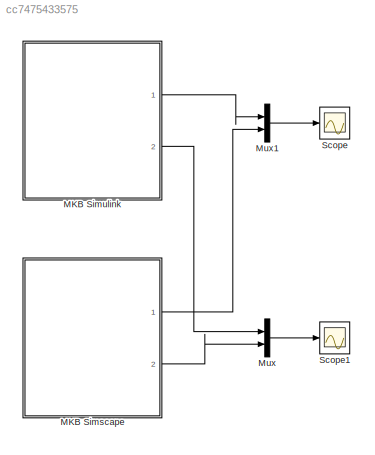
MODEL slx_cc7475433575
KIND model
CONFIG AbsTol = auto
CONFIG EnableMultiTasking = off
CONFIG FixedStep = auto
CONFIG MaxStep = 0.1
CONFIG MinStep = auto
CONFIG RelTol = 1e-3
CONFIG SampleTimeConstraint = Unconstrained
CONFIG SolverName = VariableStepAuto
CONFIG StartTime = 0.0
CONFIG StopTime = 10
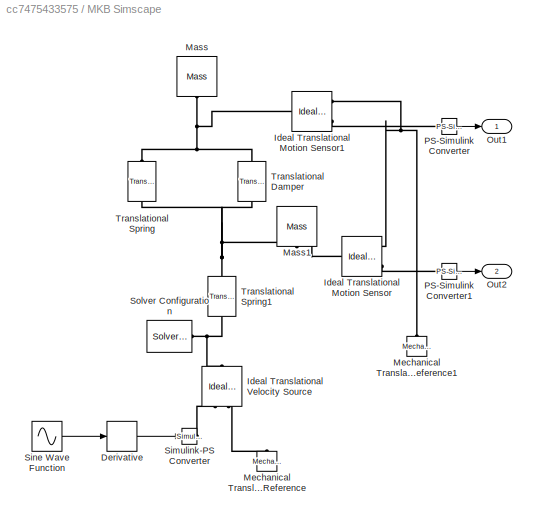
BLOCK [SubSystem] MKB Simscape
  Ports = [0, 2]
  RequestExecContextInheritance = off
BLOCK [Derivative] MKB Simscape/Derivative
BLOCK [Reference] MKB Simscape/Ideal Translational Motion Sensor  REF=fl_lib/Mechanical/Mechanical Sensors/Ideal Translational
Motion Sensor
  Ports = [0, 0, 0, 0, 0, 1, 3]
  SourceBlock = fl_lib/Mechanical/Mechanical Sensors/Ideal Translational\nMotion Sensor
  SourceProductBaseCode = PW,SS,VE
  SourceType = Ideal Translational\nMotion Sensor
BLOCK [Reference] MKB Simscape/Ideal Translational Motion Sensor1  REF=fl_lib/Mechanical/Mechanical Sensors/Ideal Translational
Motion Sensor
  Ports = [0, 0, 0, 0, 0, 1, 3]
  SourceBlock = fl_lib/Mechanical/Mechanical Sensors/Ideal Translational\nMotion Sensor
  SourceProductBaseCode = PW,SS,VE
  SourceType = Ideal Translational\nMotion Sensor
BLOCK [Reference] MKB Simscape/Ideal Translational Velocity Source  REF=fl_lib/Mechanical/Mechanical Sources/Ideal Translational
Velocity Source
  NameLocation = right
  Ports = [0, 0, 0, 0, 0, 1, 2]
  SourceBlock = fl_lib/Mechanical/Mechanical Sources/Ideal Translational\nVelocity Source
  SourceProductBaseCode = PW,SS,VE
  SourceType = Ideal Translational\nVelocity Source
BLOCK [Reference] MKB Simscape/Mass  REF=fl_lib/Mechanical/Translational
Elements/Mass
  NameLocation = left
  Ports = [0, 0, 0, 0, 0, 1]
  SourceBlock = fl_lib/Mechanical/Translational\nElements/Mass
  SourceProductBaseCode = PW,SS,VE
  SourceType = Mass
BLOCK [Reference] MKB Simscape/Mass1  REF=fl_lib/Mechanical/Translational
Elements/Mass
  NameLocation = left
  Ports = [0, 0, 0, 0, 0, 1]
  SourceBlock = fl_lib/Mechanical/Translational\nElements/Mass
  SourceProductBaseCode = PW,SS,VE
  SourceType = Mass
BLOCK [Reference] MKB Simscape/Mechanical Translational Reference  REF=fl_lib/Mechanical/Translational
Elements/Mechanical
Translational
Reference
  NameLocation = right
  Ports = [0, 0, 0, 0, 0, 1]
  SourceBlock = fl_lib/Mechanical/Translational\nElements/Mechanical\nTranslational\nReference
  SourceProductBaseCode = PW,SS,VE
  SourceType = Mechanical\nTranslational\nReference
BLOCK [Reference] MKB Simscape/Mechanical Translational Reference1  REF=fl_lib/Mechanical/Translational
Elements/Mechanical
Translational
Reference
  NameLocation = right
  Ports = [0, 0, 0, 0, 0, 1]
  SourceBlock = fl_lib/Mechanical/Translational\nElements/Mechanical\nTranslational\nReference
  SourceProductBaseCode = PW,SS,VE
  SourceType = Mechanical\nTranslational\nReference
BLOCK [Outport] MKB Simscape/Out1
BLOCK [Outport] MKB Simscape/Out2
  Port = 2
BLOCK [Reference] MKB Simscape/PS-Simulink Converter  REF=nesl_utility/PS-Simulink
Converter
  Ports = [0, 1, 0, 0, 0, 1]
  SourceBlock = nesl_utility/PS-Simulink\nConverter
  SourceProductBaseCode = SS,PW,VE
  SourceType = PS-Simulink\nConverter
BLOCK [Reference] MKB Simscape/PS-Simulink Converter1  REF=nesl_utility/PS-Simulink
Converter
  Ports = [0, 1, 0, 0, 0, 1]
  SourceBlock = nesl_utility/PS-Simulink\nConverter
  SourceProductBaseCode = SS,PW,VE
  SourceType = PS-Simulink\nConverter
BLOCK [Reference] MKB Simscape/Simulink-PS Converter  REF=nesl_utility/Simulink-PS
Converter
  Ports = [1, 0, 0, 0, 0, 0, 1]
  SourceBlock = nesl_utility/Simulink-PS\nConverter
  SourceProductBaseCode = SS,PW,VE
  SourceType = Simulink-PS\nConverter
BLOCK [Sin] MKB Simscape/Sine Wave Function
  Amplitude = 0.05
  Frequency = 0.5*pi
  Ports = [0, 1]
  SampleTime = 0
BLOCK [Reference] MKB Simscape/Solver Configuration  REF=nesl_utility/Solver
Configuration
  Ports = [0, 0, 0, 0, 0, 0, 1]
  SourceBlock = nesl_utility/Solver\nConfiguration
  SourceProductBaseCode = SS,PW,VE
  SourceType = Solver\nConfiguration
BLOCK [Reference] MKB Simscape/Translational Damper  REF=fl_lib/Mechanical/Translational
Elements/Translational Damper
  NameLocation = right
  Ports = [0, 0, 0, 0, 0, 1, 1]
  SourceBlock = fl_lib/Mechanical/Translational\nElements/Translational Damper
  SourceProductBaseCode = PW,SS,VE
  SourceType = Translational Damper
BLOCK [Reference] MKB Simscape/Translational Spring  REF=fl_lib/Mechanical/Translational
Elements/Translational Spring
  NameLocation = right
  Ports = [0, 0, 0, 0, 0, 1, 1]
  SourceBlock = fl_lib/Mechanical/Translational\nElements/Translational Spring
  SourceProductBaseCode = PW,SS,VE
  SourceType = Translational Spring
BLOCK [Reference] MKB Simscape/Translational Spring1  REF=fl_lib/Mechanical/Translational
Elements/Translational Spring
  NameLocation = right
  Ports = [0, 0, 0, 0, 0, 1, 1]
  SourceBlock = fl_lib/Mechanical/Translational\nElements/Translational Spring
  SourceProductBaseCode = PW,SS,VE
  SourceType = Translational Spring
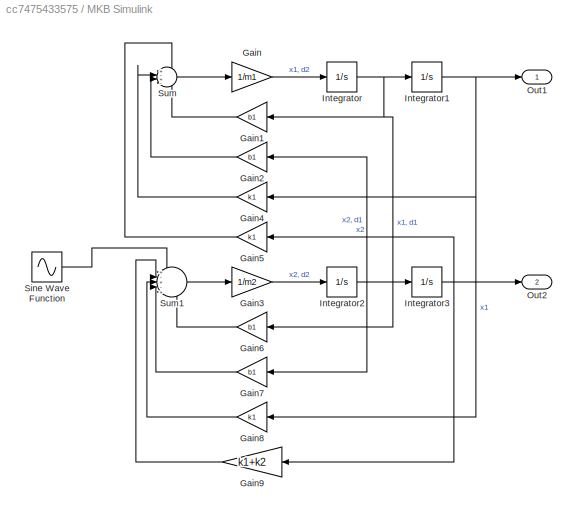
BLOCK [SubSystem] MKB Simulink
  Ports = [0, 2]
  RequestExecContextInheritance = off
BLOCK [Gain] MKB Simulink/Gain
  Gain = 1/m1
BLOCK [Gain] MKB Simulink/Gain1
  Gain = b1
BLOCK [Gain] MKB Simulink/Gain2
  Gain = b1
BLOCK [Gain] MKB Simulink/Gain3
  Gain = 1/m2
BLOCK [Gain] MKB Simulink/Gain4
  Gain = k1
BLOCK [Gain] MKB Simulink/Gain5
  Gain = k1
BLOCK [Gain] MKB Simulink/Gain6
  Gain = b1
BLOCK [Gain] MKB Simulink/Gain7
  Gain = b1
BLOCK [Gain] MKB Simulink/Gain8
  Gain = k1
BLOCK [Gain] MKB Simulink/Gain9
  Gain = k1+k2
BLOCK [Integrator] MKB Simulink/Integrator
  Ports = [1, 1]
BLOCK [Integrator] MKB Simulink/Integrator1
  Ports = [1, 1]
BLOCK [Integrator] MKB Simulink/Integrator2
  Ports = [1, 1]
BLOCK [Integrator] MKB Simulink/Integrator3
  Ports = [1, 1]
BLOCK [Outport] MKB Simulink/Out1
BLOCK [Outport] MKB Simulink/Out2
  Port = 2
BLOCK [Sin] MKB Simulink/Sine Wave Function
  Amplitude = 0.05*k2
  Frequency = 0.5*pi
  Ports = [0, 1]
  SampleTime = 0
BLOCK [Sum] MKB Simulink/Sum
  Inputs = +-+-
  Ports = [4, 1]
BLOCK [Sum] MKB Simulink/Sum1
  Inputs = +-+-+
  Ports = [5, 1]
BLOCK [Mux] Mux
  DisplayOption = bar
  Inputs = 2
  Ports = [2, 1]
BLOCK [Mux] Mux1
  DisplayOption = bar
  Inputs = 2
  Ports = [2, 1]
BLOCK [Scope] Scope
  Floating = off
  NumInputPorts = 1
  Ports = [1]
  ScopeSpecificationString = Simulink.scopes.TimeScopeBlockCfg('CurrentConfiguration', extmgr.ConfigurationSet(extmgr.Configuration('Core','General UI',true),extmgr.Configuration('Core','Source UI',true),extmgr.Configuration('Sources','WiredSimulink',true),extmgr.Configuration('Visuals','Time Domain',true,'SerializedDisplays',{struct('MinYLimReal','-0.07031','MaxYLimReal','0.08165','YLabelReal','','MinYLimMag','0.00000','MaxY...<+1385ch>
BLOCK [Scope] Scope1
  Floating = off
  NumInputPorts = 1
  Ports = [1]
  ScopeSpecificationString = Simulink.scopes.TimeScopeBlockCfg('CurrentConfiguration', extmgr.ConfigurationSet(extmgr.Configuration('Core','General UI',true),extmgr.Configuration('Core','Source UI',true),extmgr.Configuration('Sources','WiredSimulink',true,'DataLoggingVariableName','ScopeData1'),extmgr.Configuration('Visuals','Time Domain',true,'SerializedDisplays',{struct('MinYLimReal','-0.06652','MaxYLimReal','0.07213','YLab...<+1424ch>
LINE MKB Simscape/Derivative:1 -> MKB Simscape/Simulink-PS Converter:1
LINE MKB Simscape/PS-Simulink Converter1:1 -> MKB Simscape/Out2:1
LINE MKB Simscape/PS-Simulink Converter:1 -> MKB Simscape/Out1:1
LINE MKB Simscape/Sine Wave Function:1 -> MKB Simscape/Derivative:1
LINE MKB Simscape:1 -> Mux1:2
LINE MKB Simscape:2 -> Mux:2
LINE MKB Simulink/Gain1:1 -> MKB Simulink/Sum:4
LINE MKB Simulink/Gain2:1 -> MKB Simulink/Sum:3
LINE MKB Simulink/Gain3:1 -> MKB Simulink/Integrator2:1
LINE MKB Simulink/Gain4:1 -> MKB Simulink/Sum:2
LINE MKB Simulink/Gain5:1 -> MKB Simulink/Sum:1
LINE MKB Simulink/Gain6:1 -> MKB Simulink/Sum1:5
LINE MKB Simulink/Gain7:1 -> MKB Simulink/Sum1:4
LINE MKB Simulink/Gain8:1 -> MKB Simulink/Sum1:3
LINE MKB Simulink/Gain9:1 -> MKB Simulink/Sum1:2
LINE MKB Simulink/Gain:1 -> MKB Simulink/Integrator:1
NET MKB Simulink/Integrator1:1 -> MKB Simulink/Gain4:1, MKB Simulink/Gain8:1, MKB Simulink/Out1:1
NET MKB Simulink/Integrator2:1 -> MKB Simulink/Gain2:1, MKB Simulink/Gain7:1, MKB Simulink/Integrator3:1
NET MKB Simulink/Integrator3:1 -> MKB Simulink/Gain5:1, MKB Simulink/Gain9:1, MKB Simulink/Out2:1
NET MKB Simulink/Integrator:1 -> MKB Simulink/Gain1:1, MKB Simulink/Gain6:1, MKB Simulink/Integrator1:1
LINE MKB Simulink/Sine Wave Function:1 -> MKB Simulink/Sum1:1
LINE MKB Simulink/Sum1:1 -> MKB Simulink/Gain3:1
LINE MKB Simulink/Sum:1 -> MKB Simulink/Gain:1
LINE MKB Simulink:1 -> Mux1:1
LINE MKB Simulink:2 -> Mux:1
LINE Mux1:1 -> Scope:1
LINE Mux:1 -> Scope1:1
PNET net1: MKB Simscape/Ideal Translational Motion Sensor1:LConn1 -- MKB Simscape/Mass:LConn1 -- MKB Simscape/Translational Damper:RConn1 -- MKB Simscape/Translational Spring:RConn1
PNET net2: MKB Simscape/Ideal Translational Motion Sensor1:RConn1 -- MKB Simscape/Ideal Translational Motion Sensor:RConn1 -- MKB Simscape/Mechanical Translational Reference1:LConn1
PLINE MKB Simscape/Ideal Translational Motion Sensor1:RConn3 -- MKB Simscape/PS-Simulink Converter:LConn1
PNET net3: MKB Simscape/Ideal Translational Motion Sensor:LConn1 -- MKB Simscape/Mass1:LConn1 -- MKB Simscape/Translational Damper:LConn1 -- MKB Simscape/Translational Spring1:RConn1 -- MKB Simscape/Translational Spring:LConn1
PLINE MKB Simscape/Ideal Translational Motion Sensor:RConn3 -- MKB Simscape/PS-Simulink Converter1:LConn1
PNET net4: MKB Simscape/Ideal Translational Velocity Source:LConn1 -- MKB Simscape/Solver Configuration:RConn1 -- MKB Simscape/Translational Spring1:LConn1
PLINE MKB Simscape/Ideal Translational Velocity Source:RConn1 -- MKB Simscape/Simulink-PS Converter:RConn1
PLINE MKB Simscape/Ideal Translational Velocity Source:RConn2 -- MKB Simscape/Mechanical Translational Reference:LConn1
note: NET lines group one-source signal fan-out (src -> all destinations, sorted); 1:1 wires keep LINE; PNET lines group multi-terminal physical nets as a canonical sorted terminal list (undirected conserving connections); 2-terminal nets keep the pairwise PLINE form
